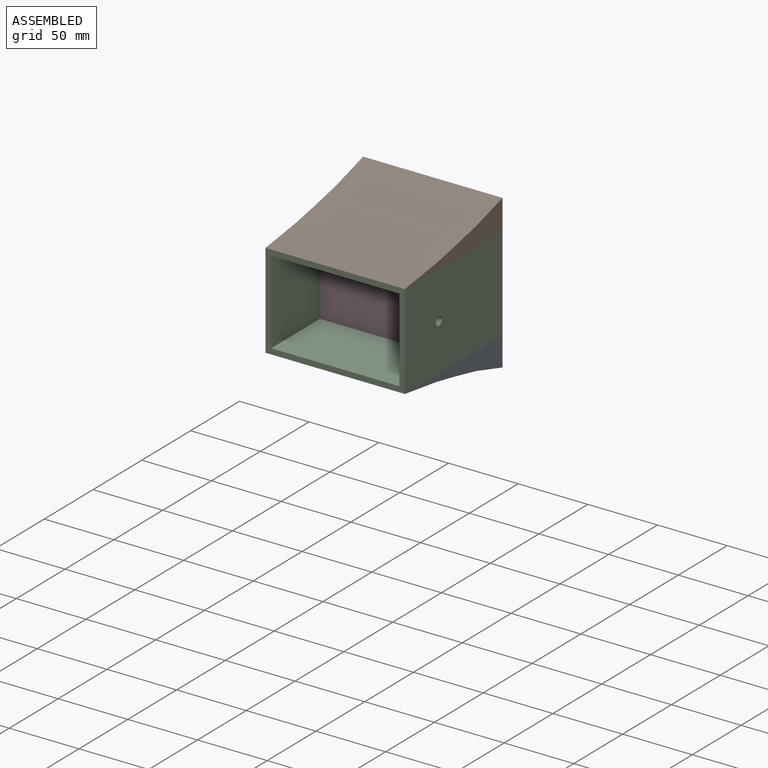
[diagram: assembled view]
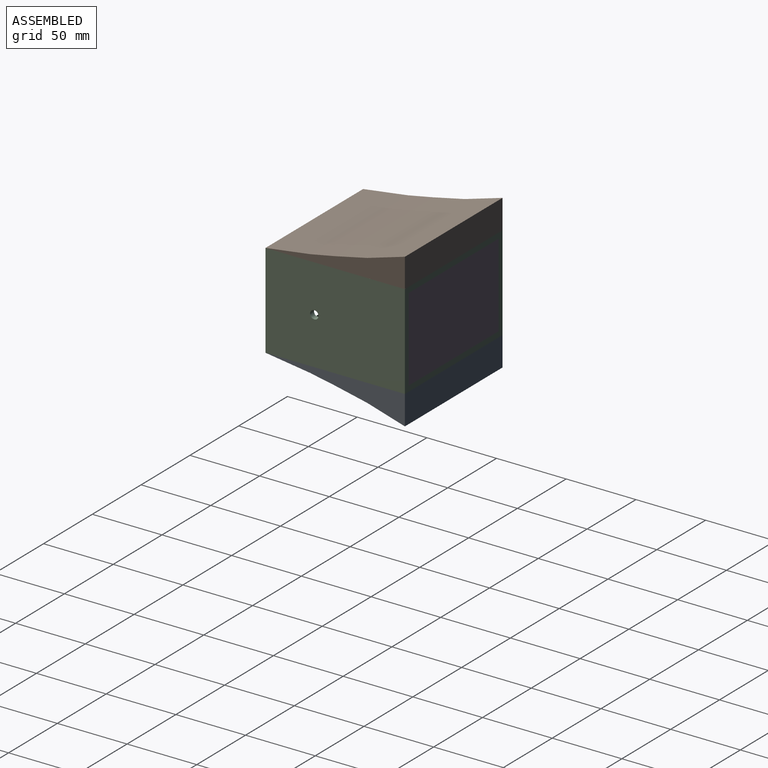
[diagram: assembled view, second angle]
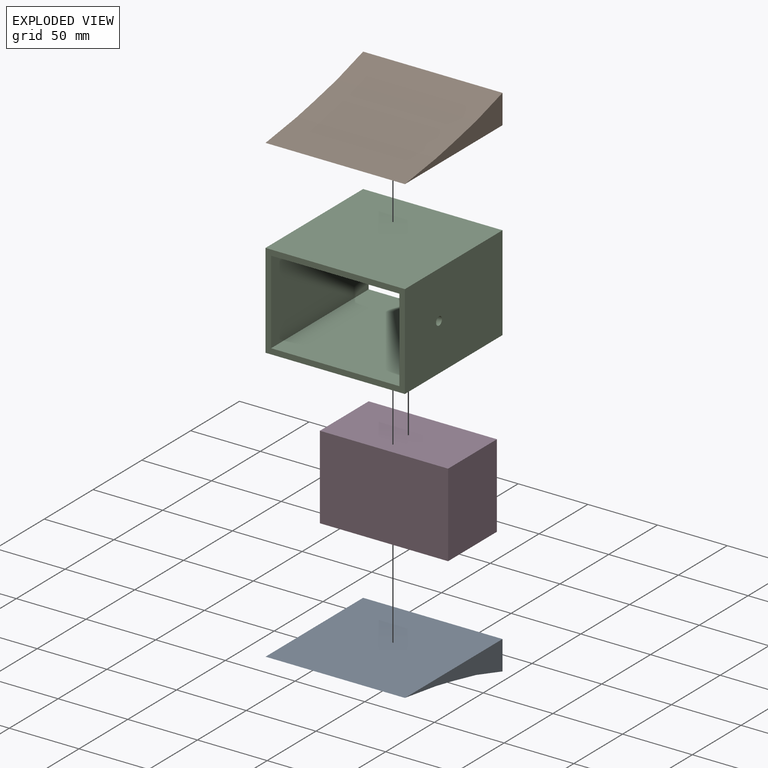
[diagram: exploded view]
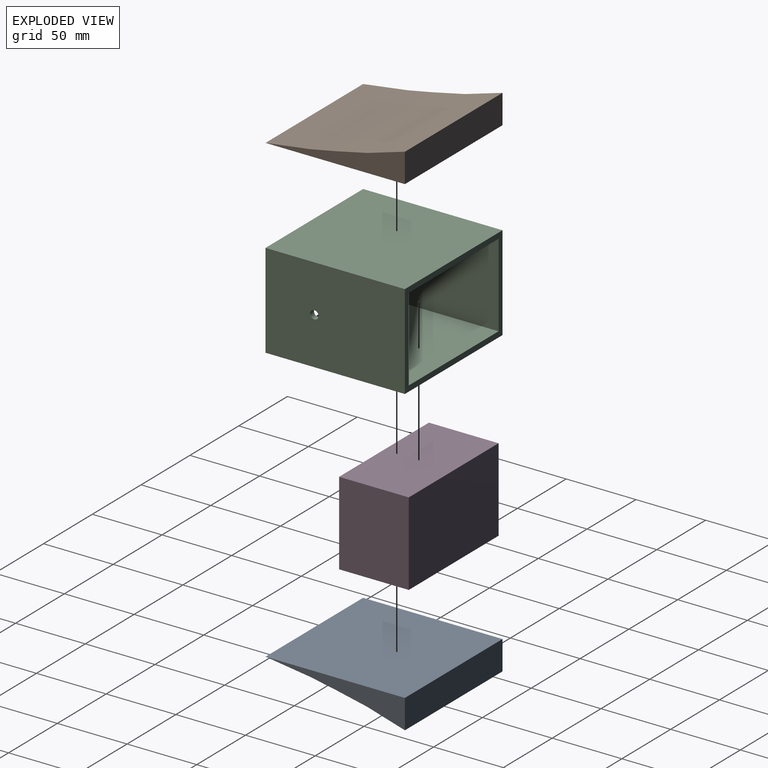
[diagram: exploded view, second angle]
ASSEMBLY  parts=4 mates=3
PART A: 8 faces, bbox 100x100x21 mm
  f0: plane 100x100mm, normal (0,0,-1), area 10000mm2, adj f1,f5,f6,f7
  f1: plane 100x21mm, normal (0,1,0), area 2100mm2, adj f0,f2,f6,f7
  f2: plane 100x27mm, normal (0,-0.28,0.96), area 2816mm2, adj f1,f3,f6,f7
  f3: plane 100x23mm, normal (0,-0.21,0.98), area 2353.7mm2, adj f2,f4,f6,f7
  f4: plane 100x18mm, normal (0,-0.19,0.98), area 1833.7mm2, adj f3,f5,f6,f7
  f5: plane 100x32mm, normal (0,-0.14,0.99), area 3231.5mm2, adj f0,f4,f6,f7
  f6: plane 100x21mm, normal (1,0,0), area 885mm2, adj f0,f1,f2,f3,f4,f5
  f7: plane 100x21mm, normal (-1,0,0), area 885mm2, adj f0,f1,f2,f3,f4,f5
PART B: same geometry as A
PART C: 11 faces, bbox 100x100x68 mm
  f0: plane 100x68mm, normal (0,1,0), area 1280mm2, adj f2,f3,f4,f5,f6,f7,f8,f9
  f1: plane 100x68mm, normal (0,-1,0), area 1280mm2, adj f2,f3,f4,f5,f6,f7,f8,f9
  f2: plane 100x68mm, normal (-1,0,0), area 6800mm2, adj f0,f1,f3,f5
  f3: plane 100x100mm, normal (0,0,-1), area 10000mm2, adj f0,f1,f2,f4
  f4: plane 100x68mm, normal (1,0,0), area 6771.7mm2, adj f0,f1,f3,f5,f10
  f5: plane 100x100mm, normal (0,0,1), area 10000mm2, adj f0,f1,f2,f4
  f6: plane 100x60mm, normal (1,0,0), area 6000mm2, adj f0,f1,f7,f9
  f7: plane 100x92mm, normal (0,0,1), area 9200mm2, adj f0,f1,f6,f8
  f8: plane 100x60mm, normal (-1,0,0), area 5971.7mm2, adj f0,f1,f7,f9,f10
  f9: plane 100x92mm, normal (0,0,-1), area 9200mm2, adj f0,f1,f6,f8
  f10: cylinder r=3mm len=6mm, axis (-1,0,0), area 75.4mm2, adj f4,f8
PART D: 6 faces, bbox 92x50x60 mm
  f0: plane 60x50mm, normal (-1,0,0), area 3000mm2, adj f1,f3,f4,f5
  f1: plane 92x50mm, normal (0,0,-1), area 4600mm2, adj f0,f2,f4,f5
  f2: plane 60x50mm, normal (1,0,0), area 3000mm2, adj f1,f3,f4,f5
  f3: plane 92x50mm, normal (0,0,1), area 4600mm2, adj f0,f2,f4,f5
  f4: plane 92x60mm, normal (0,-1,0), area 5520mm2, adj f0,f1,f2,f3
  f5: plane 92x60mm, normal (0,1,0), area 5520mm2, adj f0,f1,f2,f3
PLACE A rot(axis=(0,-1,0),180deg) t=(45.49,-23.81,-65.8)mm
PLACE B t=(-54.51,-23.81,2.2)mm
PLACE C t=(-50.51,-73.81,-61.8)mm
PLACE D t=(-50.51,26.19,-61.8)mm
MATE fastened B.f0 <-> C.f5  axis (0,0,-1) through (45.49,-73.81,2.2)mm
MATE fastened A.f0 <-> C.f3  axis (0,0,1) through (45.49,-73.81,-65.8)mm
MATE fastened D.f3 <-> C.f9  axis (0,0,1) through (-50.51,26.19,-1.8)mm
